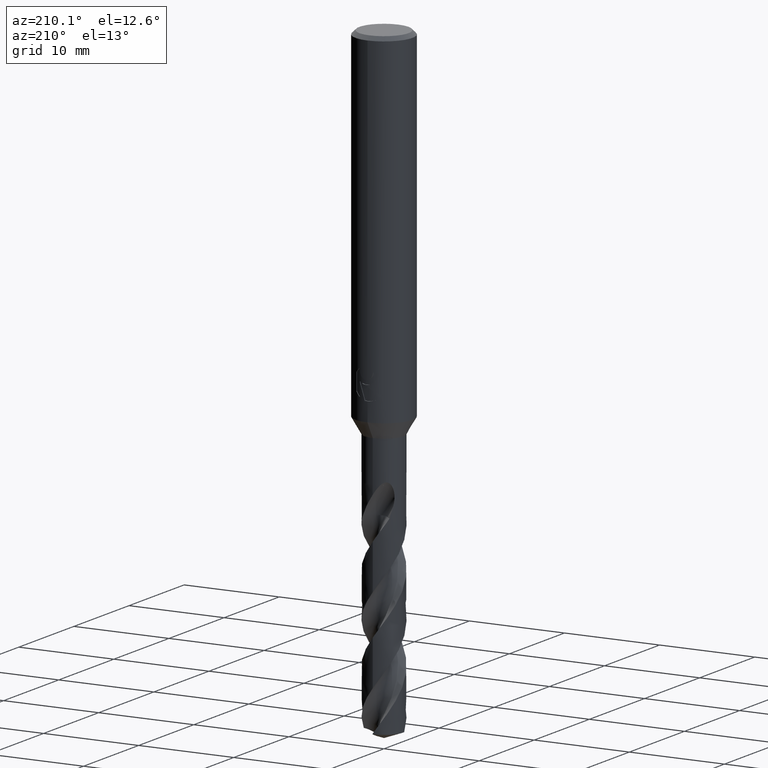
[diagram: clean part render]
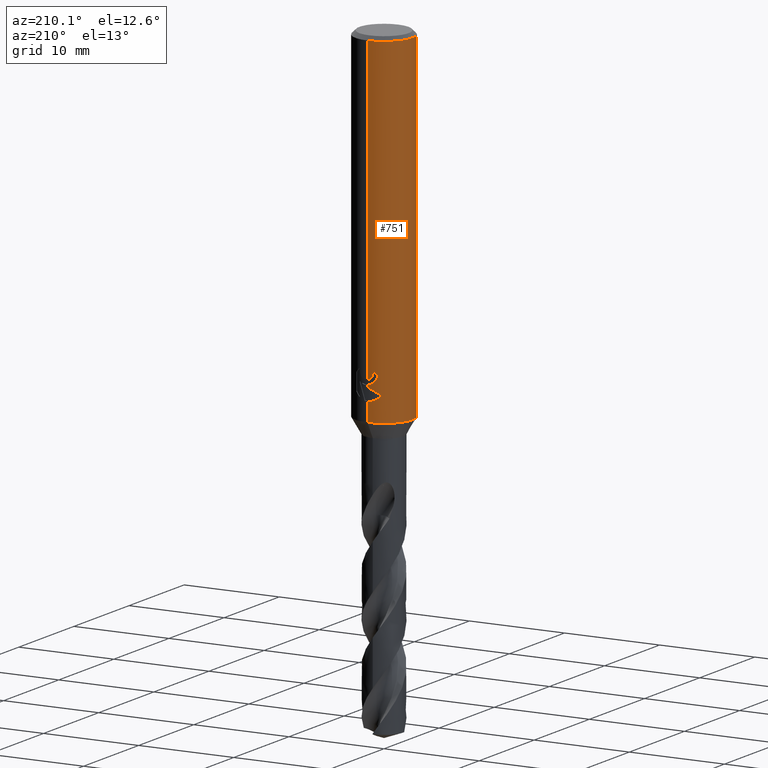
[diagram: same view with one face highlighted and labeled with its STEP entity id]
A machine part, auxiliary view. The second image highlights one B-rep face of the part: STEP entity #751.
In plain terms, the highlighted cylindrical surface (edge-blend (fillet) strip) has radius 3 mm, axis along (-0, -0, 1).
Its self-contained STEP definition (entity closure, byte-faithful):
#295=VERTEX_POINT('',#803);
#307=VERTEX_POINT('',#816);
#319=EDGE_CURVE('',#611,#589,#829,.T.);
#331=EDGE_CURVE('',#461,#399,#841,.T.);
#353=VERTEX_POINT('',#865);
#365=VERTEX_POINT('',#878);
#393=EDGE_CURVE('',#755,#611,#908,.T.);
#399=VERTEX_POINT('',#914);
#401=EDGE_CURVE('',#571,#755,#916,.T.);
#461=VERTEX_POINT('',#985);
#479=EDGE_CURVE('',#655,#657,#1005,.T.);
#495=EDGE_CURVE('',#589,#461,#1021,.T.);
#497=EDGE_CURVE('',#399,#307,#1023,.T.);
#527=EDGE_CURVE('',#353,#295,#1055,.T.);
#569=EDGE_CURVE('',#307,#655,#1101,.T.);
#571=VERTEX_POINT('',#1103);
#575=EDGE_CURVE('',#365,#657,#1107,.T.);
#589=VERTEX_POINT('',#1122);
#611=VERTEX_POINT('',#1146);
#655=VERTEX_POINT('',#1196);
#657=VERTEX_POINT('',#1198);
#693=EDGE_CURVE('',#295,#571,#1240,.T.);
#701=EDGE_CURVE('',#365,#353,#1249,.T.);
#751=ADVANCED_FACE('',(#1303),#1304,.T.);
#755=VERTEX_POINT('',#1308);
#803=CARTESIAN_POINT('',(0.0,3.0,-0.399999999999999));
#816=CARTESIAN_POINT('',(-1.337052752443,2.68557069115386,-33.3720803908795));
#829=CIRCLE('',#1621,3.0);
#841=LINE('',#1637,#1638);
#865=CARTESIAN_POINT('',(3.67381906146713E-016,-3.0,-0.399999999999999));
#878=CARTESIAN_POINT('',(3.67381906146713E-016,-3.0,-36.0));
#908=B_SPLINE_CURVE_WITH_KNOTS('',3,(#2594,#2595,#2596,#2597,#2598,#2599,#2600,#2601,#2602,#2603,#2604,#2605,#2606,#2607,#2608,#2609,#2610,#2611,#2612,#2613,#2614,#2615,#2616,#2617,#2618,#2619,#2620),.UNSPECIFIED.,.F.,.F.,(4,2,3,2,2,2,2,2,2,2,2,2,4),(-0.54422824842136,-0.27211412421068,0.0,0.272114124210678,0.544228248421357,0.817906359646673,1.09158447087199,1.36255924571499,1.63353402055798,1.90530456554772,2.17707511053746,2.4488456555272,2.72061620051693),.UNSPECIFIED.);
#914=CARTESIAN_POINT('',(-3.67366600472444E-016,3.0,-32.7128911336578));
#916=B_SPLINE_CURVE_WITH_KNOTS('',3,(#2723,#2724,#2725,#2726,#2727,#2728,#2729,#2730,#2731,#2732,#2733,#2734,#2735,#2736,#2737,#2738,#2739,#2740,#2741,#2742,#2743,#2744,#2745,#2746,#2747,#2748,#2749),.UNSPECIFIED.,.F.,.F.,(4,2,3,2,2,2,2,2,2,2,2,2,4),(-0.54422824842136,-0.27211412421068,0.0,0.272114124210678,0.544228248421357,0.817906359646673,1.09158447087199,1.36255924571499,1.63353402055798,1.90530456554772,2.17707511053746,2.4488456555272,2.72061620051693),.UNSPECIFIED.);
#985=CARTESIAN_POINT('',(-2.06254272401587E-016,3.0,-32.5000801551881));
#1005=LINE('',#2969,#2970);
#1021=B_SPLINE_CURVE_WITH_KNOTS('',3,(#3152,#3153,#3154,#3155,#3156,#3157,#3158,#3159,#3160,#3161,#3162,#3163,#3164,#3165),.UNSPECIFIED.,.F.,.F.,(4,2,2,2,2,2,4),(3.16026050654945,3.61086409539206,4.06146768423468,4.51207127307729,4.95991823802074,5.40776520296419,5.86282890530594),.UNSPECIFIED.);
#1023=ELLIPSE('',#3168,3.34478529612858,3.0);
#1055=CIRCLE('',#3830,3.0);
#1101=B_SPLINE_CURVE_WITH_KNOTS('',3,(#4153,#4154,#4155,#4156,#4157,#4158,#4159,#4160,#4161,#4162,#4163,#4164,#4165,#4166,#4167,#4168),.UNSPECIFIED.,.F.,.F.,(4,2,2,2,2,2,2,4),(5.66023402257373,6.29060333517104,6.60504483258975,6.91948633000846,7.23392782742717,7.54836932484587,7.86141901111221,8.17446869737855),.UNSPECIFIED.);
#1103=CARTESIAN_POINT('',(-1.20768269592175E-015,3.0,-32.0232688117743));
#1107=CIRCLE('',#4176,3.0);
#1122=CARTESIAN_POINT('',(-1.0350734039088,2.81578107254819,-31.3171221986971));
#1146=CARTESIAN_POINT('',(-0.562333990228013,2.94682549253162,-31.3171221986971));
#1196=CARTESIAN_POINT('',(-2.46407913303377E-016,3.0,-34.0310253601033));
#1198=CARTESIAN_POINT('',(0.0,3.0,-36.0));
#1240=LINE('',#4784,#4785);
#1249=LINE('',#4812,#4813);
#1303=FACE_OUTER_BOUND('',#5382,.T.);
#1304=CYLINDRICAL_SURFACE('',#5383,3.0);
#1308=CARTESIAN_POINT('',(-0.486378944383045,2.96031003823262,-31.6432837483006));
#1621=AXIS2_PLACEMENT_3D('',#5431,#5432,#5433);
#1637=CARTESIAN_POINT('',(-3.67381906146713E-016,3.0,-18.2));
#1638=VECTOR('',#5438,1.0);
#2594=CARTESIAN_POINT('',(0.665621182276714,2.92522622060321,-30.8140957881762));
#2595=CARTESIAN_POINT('',(0.728850563417096,2.91083867849353,-30.877518087557));
#2596=CARTESIAN_POINT('',(0.783900459387161,2.89602337967411,-30.9578702196133));
#2597=CARTESIAN_POINT('',(0.857188692916628,2.87518328740958,-31.1345580124299));
#2598=CARTESIAN_POINT('',(0.875400981188567,2.86943777108584,-31.2309373045166));
#2599=CARTESIAN_POINT('',(0.875400981188567,2.86943777108584,-31.3216420125868));
#2600=CARTESIAN_POINT('',(0.875400981188567,2.86943777108584,-31.412346720657));
#2601=CARTESIAN_POINT('',(0.857188692916629,2.87518328740958,-31.5087260127437));
#2602=CARTESIAN_POINT('',(0.783900459387161,2.89602337967411,-31.6854138055602));
#2603=CARTESIAN_POINT('',(0.728850563417096,2.91083867849353,-31.7657659376165));
#2604=CARTESIAN_POINT('',(0.60202838769231,2.93969645569731,-31.8929750586276));
#2605=CARTESIAN_POINT('',(0.5214778595293,2.95568533572518,-31.9483797636259));
#2606=CARTESIAN_POINT('',(0.34429909105015,2.98152194310932,-32.0221641076746));
#2607=CARTESIAN_POINT('',(0.247628172090375,2.99115403786358,-32.0405166027747));
#2608=CARTESIAN_POINT('',(0.0663244946631877,3.00062654348629,-32.0405166027747));
#2609=CARTESIAN_POINT('',(-0.0299285908853379,3.00115720326599,-32.0224875186921));
#2610=CARTESIAN_POINT('',(-0.206881310600538,2.99416773126077,-31.949244373347));
#2611=CARTESIAN_POINT('',(-0.287593937381961,2.98687212067831,-31.8940404490632));
#2612=CARTESIAN_POINT('',(-0.415200117492864,2.97182576996222,-31.7666805419979));
#2613=CARTESIAN_POINT('',(-0.470604049431396,2.96309385107775,-31.6859121102136));
#2614=CARTESIAN_POINT('',(-0.544183869965539,2.95046729924835,-31.5086992019516));
#2615=CARTESIAN_POINT('',(-0.562348199187247,2.94682278104247,-31.41223219425));
#2616=CARTESIAN_POINT('',(-0.562348199187247,2.94682278104247,-31.2310518309235));
#2617=CARTESIAN_POINT('',(-0.54418386996554,2.95046729924835,-31.134584823222));
#2618=CARTESIAN_POINT('',(-0.4706040494314,2.96309385107775,-30.95737191496));
#2619=CARTESIAN_POINT('',(-0.415200117492863,2.97182576996222,-30.8766034831756));
#2620=CARTESIAN_POINT('',(-0.351303479704285,2.97935997575782,-30.812830162452));
#2723=CARTESIAN_POINT('',(0.665621182276714,2.92522622060321,-30.8140957881762));
#2724=CARTESIAN_POINT('',(0.728850563417096,2.91083867849353,-30.877518087557));
#2725=CARTESIAN_POINT('',(0.783900459387161,2.89602337967411,-30.9578702196133));
#2726=CARTESIAN_POINT('',(0.857188692916628,2.87518328740958,-31.1345580124299));
#2727=CARTESIAN_POINT('',(0.875400981188567,2.86943777108584,-31.2309373045166));
#2728=CARTESIAN_POINT('',(0.875400981188567,2.86943777108584,-31.3216420125868));
#2729=CARTESIAN_POINT('',(0.875400981188567,2.86943777108584,-31.412346720657));
#2730=CARTESIAN_POINT('',(0.857188692916629,2.87518328740958,-31.5087260127437));
#2731=CARTESIAN_POINT('',(0.783900459387161,2.89602337967411,-31.6854138055602));
#2732=CARTESIAN_POINT('',(0.728850563417096,2.91083867849353,-31.7657659376165));
#2733=CARTESIAN_POINT('',(0.60202838769231,2.93969645569731,-31.8929750586276));
#2734=CARTESIAN_POINT('',(0.5214778595293,2.95568533572518,-31.9483797636259));
#2735=CARTESIAN_POINT('',(0.34429909105015,2.98152194310932,-32.0221641076746));
#2736=CARTESIAN_POINT('',(0.247628172090375,2.99115403786358,-32.0405166027747));
#2737=CARTESIAN_POINT('',(0.0663244946631877,3.00062654348629,-32.0405166027747));
#2738=CARTESIAN_POINT('',(-0.0299285908853379,3.00115720326599,-32.0224875186921));
#2739=CARTESIAN_POINT('',(-0.206881310600538,2.99416773126077,-31.949244373347));
#2740=CARTESIAN_POINT('',(-0.287593937381961,2.98687212067831,-31.8940404490632));
#2741=CARTESIAN_POINT('',(-0.415200117492864,2.97182576996222,-31.7666805419979));
#2742=CARTESIAN_POINT('',(-0.470604049431396,2.96309385107775,-31.6859121102136));
#2743=CARTESIAN_POINT('',(-0.544183869965539,2.95046729924835,-31.5086992019516));
#2744=CARTESIAN_POINT('',(-0.562348199187247,2.94682278104247,-31.41223219425));
#2745=CARTESIAN_POINT('',(-0.562348199187247,2.94682278104247,-31.2310518309235));
#2746=CARTESIAN_POINT('',(-0.54418386996554,2.95046729924835,-31.134584823222));
#2747=CARTESIAN_POINT('',(-0.4706040494314,2.96309385107775,-30.95737191496));
#2748=CARTESIAN_POINT('',(-0.415200117492863,2.97182576996222,-30.8766034831756));
#2749=CARTESIAN_POINT('',(-0.351303479704285,2.97935997575782,-30.812830162452));
#2969=CARTESIAN_POINT('',(-3.67381906146713E-016,3.0,-18.2));
#2970=VECTOR('',#5631,1.0);
#3152=CARTESIAN_POINT('',(-0.944028754947609,2.84759718180646,-30.87109591768));
#3153=CARTESIAN_POINT('',(-1.00479265183033,2.82745289805341,-31.0168616503562));
#3154=CARTESIAN_POINT('',(-1.03510901790186,2.81576798068631,-31.1761006644519));
#3155=CARTESIAN_POINT('',(-1.03510901790186,2.81576798068631,-31.4765030570137));
#3156=CARTESIAN_POINT('',(-1.00479265183033,2.82745289805341,-31.6357420711094));
#3157=CARTESIAN_POINT('',(-0.88326485806506,2.86774146555976,-31.9272735364618));
#3158=CARTESIAN_POINT('',(-0.792109261194285,2.89554580131596,-32.0596991578702));
#3159=CARTESIAN_POINT('',(-0.582867737485067,2.94478284423827,-32.2682275153448));
#3160=CARTESIAN_POINT('',(-0.450640829386874,2.96956027684007,-32.358826497016));
#3161=CARTESIAN_POINT('',(-0.159819744133953,2.99930375982357,-32.4794282329782));
#3162=CARTESIAN_POINT('',(-0.00114290335869099,3.00371168811663,-32.5093686300866));
#3163=CARTESIAN_POINT('',(0.299461057962613,2.98886806232847,-32.5093686300866));
#3164=CARTESIAN_POINT('',(0.459264276215476,2.96836791045541,-32.4785566268234));
#3165=CARTESIAN_POINT('',(0.604975334200916,2.93836771779988,-32.4175314011172));
#3168=AXIS2_PLACEMENT_3D('',#5642,#5643,#5644);
#3830=AXIS2_PLACEMENT_3D('',#5675,#5676,#5677);
#4153=CARTESIAN_POINT('',(-1.53050642192579,2.58022287650581,-33.0319811255889));
#4154=CARTESIAN_POINT('',(-1.44691631248335,2.62980577312329,-33.2314887010961));
#4155=CARTESIAN_POINT('',(-1.32276760444366,2.69707077181617,-33.4113258593841));
#4156=CARTESIAN_POINT('',(-1.10973155101076,2.78826898930335,-33.6245951706909));
#4157=CARTESIAN_POINT('',(-1.02948996220254,2.81934349084513,-33.6916117853674));
#4158=CARTESIAN_POINT('',(-0.853932698223484,2.87738531454781,-33.8105216600777));
#4159=CARTESIAN_POINT('',(-0.758609991487907,2.90431263574779,-33.8624240602539));
#4160=CARTESIAN_POINT('',(-0.558469552260235,2.94934446690523,-33.9464055954533));
#4161=CARTESIAN_POINT('',(-0.453457041446381,2.96746268462387,-33.9785511641911));
#4162=CARTESIAN_POINT('',(-0.240810292537893,2.99223469602914,-34.0209924679526));
#4163=CARTESIAN_POINT('',(-0.133171317626829,2.99887501234033,-34.0312723335086));
#4164=CARTESIAN_POINT('',(0.0759830626177195,3.00085245803086,-34.0312723335086));
#4165=CARTESIAN_POINT('',(0.183273473896684,2.99629272230549,-34.0210815541729));
#4166=CARTESIAN_POINT('',(0.39543915272815,2.97573303917486,-33.9788816901513));
#4167=CARTESIAN_POINT('',(0.500318639064909,2.95974677710468,-33.9468871509919));
#4168=CARTESIAN_POINT('',(0.600330982089903,2.93932011049205,-33.9050368602192));
#4176=AXIS2_PLACEMENT_3D('',#5733,#5734,#5735);
#4784=CARTESIAN_POINT('',(-3.67381906146713E-016,3.0,-18.2));
#4785=VECTOR('',#5915,1.0);
#4812=CARTESIAN_POINT('',(3.67381906146713E-016,-3.0,-18.2));
#4813=VECTOR('',#5926,1.0);
#5382=EDGE_LOOP('',(#5985,#5986,#5987,#5988,#5989,#5990,#5991,#5992,#5993,#5994,#5995,#5996));
#5383=AXIS2_PLACEMENT_3D('',#5997,#5998,#5999);
#5431=CARTESIAN_POINT('',(0.0,0.0,-31.3171221986971));
#5432=DIRECTION('',(0.0,-0.0,1.0));
#5433=DIRECTION('',(0.0,1.0,0.0));
#5438=DIRECTION('',(0.0,0.0,-1.0));
#5631=DIRECTION('',(0.0,0.0,-1.0));
#5642=CARTESIAN_POINT('',(0.0,0.0,-32.7128911336578));
#5643=DIRECTION('',(-0.442195774284071,0.0,0.896918556617774));
#5644=DIRECTION('',(0.896918556617774,-0.0,0.442195774284071));
#5675=CARTESIAN_POINT('',(0.0,0.0,-0.399999999999999));
#5676=DIRECTION('',(0.0,0.0,-1.0));
#5677=DIRECTION('',(0.0,1.0,0.0));
#5733=CARTESIAN_POINT('',(0.0,0.0,-36.0));
#5734=DIRECTION('',(0.0,0.0,-1.0));
#5735=DIRECTION('',(0.0,1.0,0.0));
#5915=DIRECTION('',(0.0,0.0,-1.0));
#5926=DIRECTION('',(-0.0,-0.0,1.0));
#5985=ORIENTED_EDGE('',*,*,#693,.T.);
#5986=ORIENTED_EDGE('',*,*,#401,.T.);
#5987=ORIENTED_EDGE('',*,*,#393,.T.);
#5988=ORIENTED_EDGE('',*,*,#319,.T.);
#5989=ORIENTED_EDGE('',*,*,#495,.T.);
#5990=ORIENTED_EDGE('',*,*,#331,.T.);
#5991=ORIENTED_EDGE('',*,*,#497,.T.);
#5992=ORIENTED_EDGE('',*,*,#569,.T.);
#5993=ORIENTED_EDGE('',*,*,#479,.T.);
#5994=ORIENTED_EDGE('',*,*,#575,.F.);
#5995=ORIENTED_EDGE('',*,*,#701,.T.);
#5996=ORIENTED_EDGE('',*,*,#527,.T.);
#5997=CARTESIAN_POINT('',(0.0,0.0,-18.2));
#5998=DIRECTION('',(-0.0,-0.0,1.0));
#5999=DIRECTION('',(0.0,1.0,0.0));